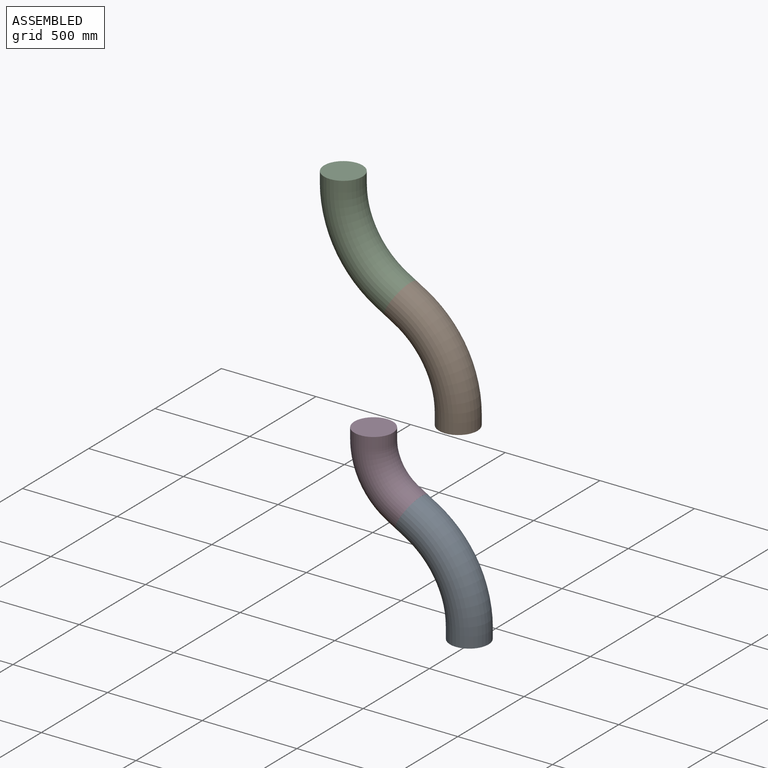
[diagram: assembled view]
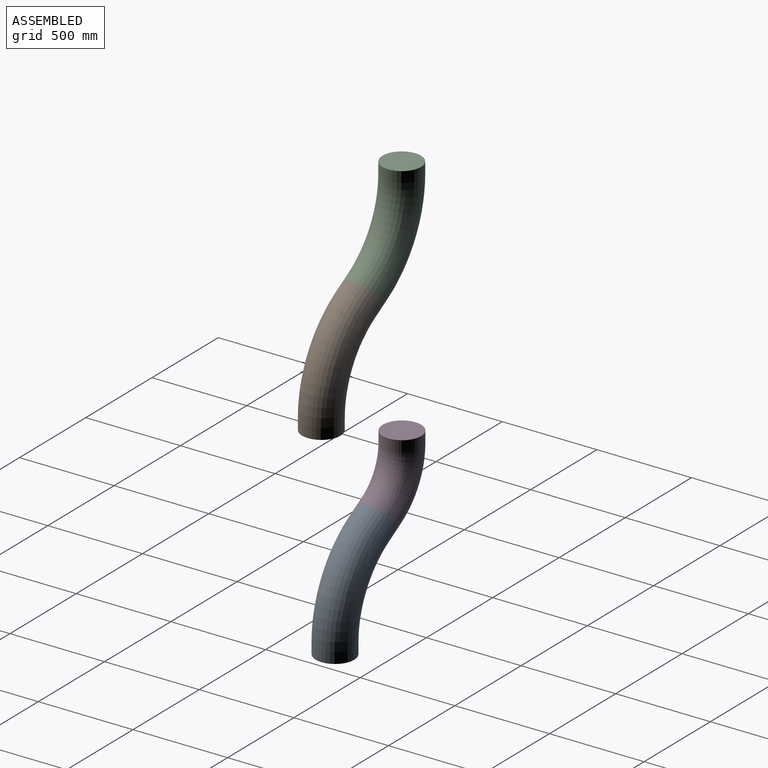
[diagram: assembled view, second angle]
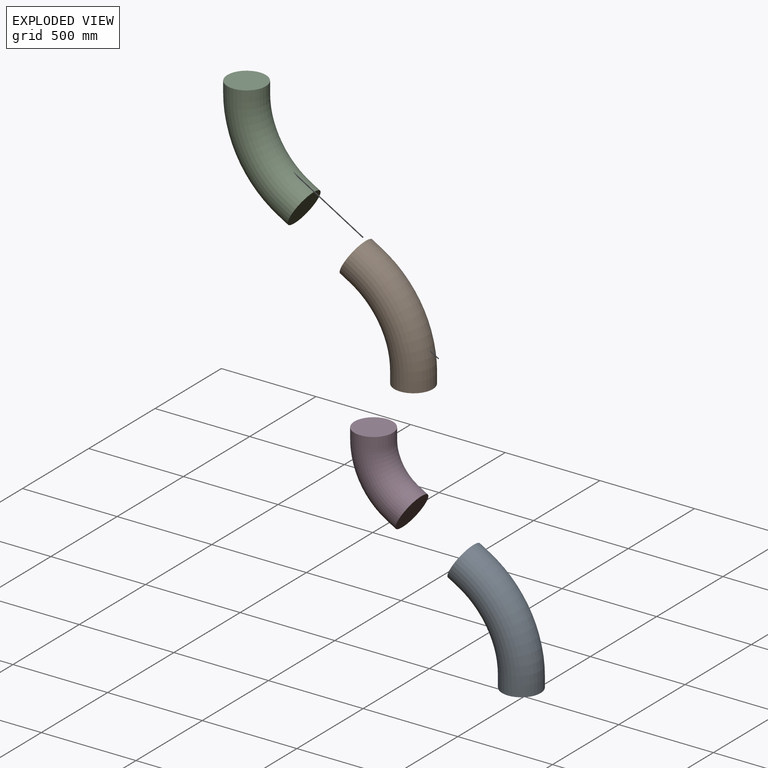
[diagram: exploded view]
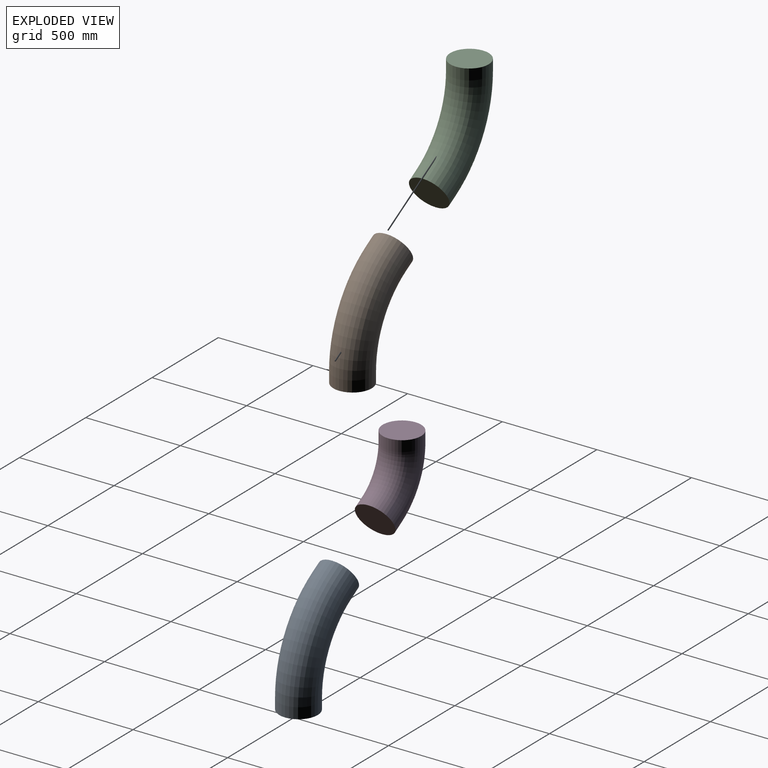
[diagram: exploded view, second angle]
ASSEMBLY  parts=4 mates=2
PART A: 5 faces, bbox 506.1x203.2x628.6 mm
  f0: cylinder r=101.6mm len=203.2mm, axis (0,0,1), area 36482.9mm2, adj f1,f2
  f1: plane 203.2x203.2mm, normal (0,0,-1), area 32429.3mm2, adj f0
  f2: torus R=508mm, axis (0,1,0), area 339598.6mm2, adj f0,f3
  f3: cylinder r=101.6mm len=204.55mm, axis (0.87,0,-0.5), area 36482.9mm2, adj f2,f4
  f4: plane 203.2x175.98mm, normal (-0.87,0,0.5), area 32429.3mm2, adj f3
PART B: same geometry as A
PART C: same geometry as A
PART D: 5 faces, bbox 387.8x203.2x438.1 mm
  f0: cylinder r=101.6mm len=203.2mm, axis (0,0,1), area 36482.9mm2, adj f1,f2
  f1: plane 203.2x203.2mm, normal (0,0,-1), area 32429.3mm2, adj f0
  f2: torus R=304.8mm, axis (0,1,0), area 203759.2mm2, adj f0,f3
  f3: cylinder r=101.6mm len=204.55mm, axis (0.87,0,-0.5), area 36482.9mm2, adj f2,f4
  f4: plane 203.2x175.98mm, normal (-0.87,0,0.5), area 32429.3mm2, adj f3
PLACE A t=(-296.21,9.98,-203.62)mm
PLACE B t=(-301.6,-65.99,843.89)mm
PLACE C rot(axis=(0,-1,0),180deg) t=(-908.59,-65.99,1780.93)mm
PLACE D rot(axis=(0,1,0),180deg) t=(-801.6,9.98,557.44)mm
MATE fastened D.f3 <-> A.f3  axis (0.87,0,-0.5) through (-599.7,9.98,264.9)mm
MATE fastened B.f3 <-> C.f3  axis (-0.87,0,0.5) through (-605.09,-65.99,1312.41)mm
